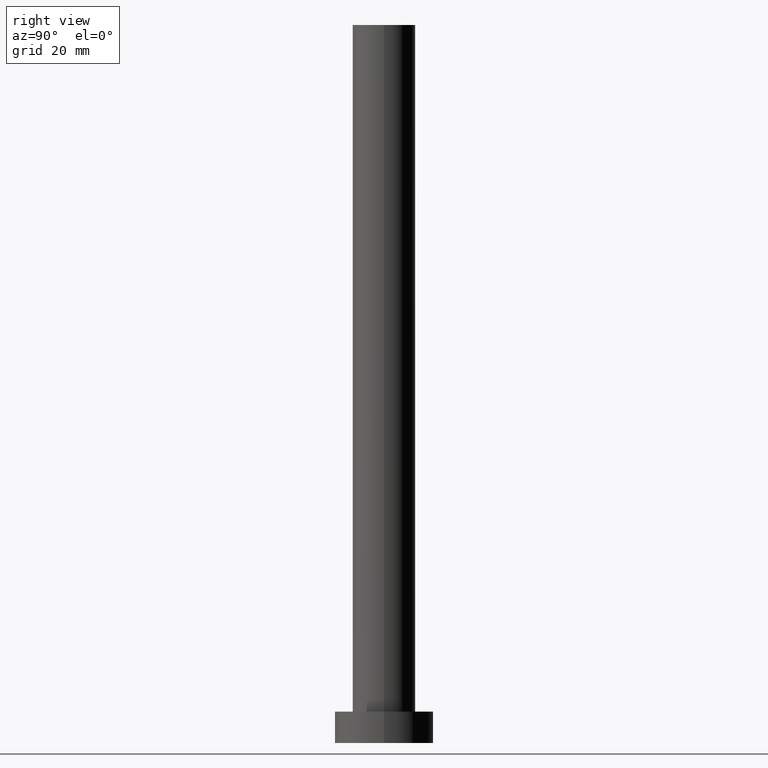
[diagram: clean part render]
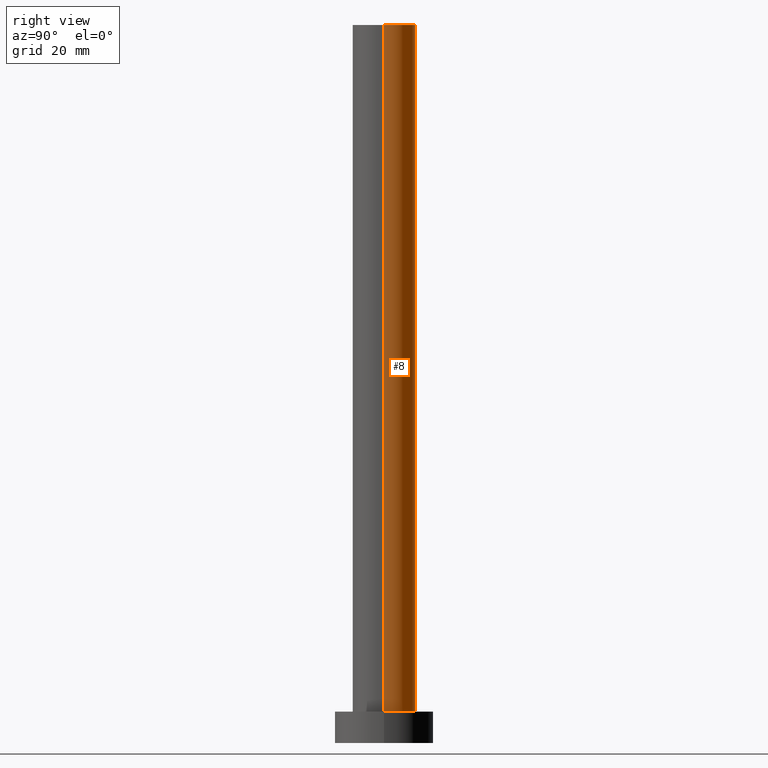
[diagram: same view with one face highlighted and labeled with its STEP entity id]
A machine part, right view. The second image highlights one B-rep face of the part: STEP entity #8.
In plain terms, the highlighted cylindrical surface (edge-blend (fillet) strip) has radius 7 mm, axis along (-0, -0, -1).
Its self-contained STEP definition (entity closure, byte-faithful):
#6 = VECTOR ( 'NONE', #203, 1000.000000000000000 ) ;
#8 = ADVANCED_FACE ( 'NONE', ( #148 ), #113, .T. ) ;
#17 = VECTOR ( 'NONE', #212, 1000.000000000000000 ) ;
#19 = EDGE_CURVE ( 'NONE', #234, #116, #88, .T. ) ;
#20 = DIRECTION ( 'NONE',  ( 1.000000000000000000, 0.000000000000000000, 0.000000000000000000 ) ) ;
#26 = EDGE_CURVE ( 'NONE', #177, #116, #80, .T. ) ;
#43 = ORIENTED_EDGE ( 'NONE', *, *, #26, .F. ) ;
#46 = EDGE_CURVE ( 'NONE', #250, #234, #106, .T. ) ;
#61 = ORIENTED_EDGE ( 'NONE', *, *, #182, .F. ) ;
#66 = CARTESIAN_POINT ( 'NONE',  ( 0.000000000000000000, 0.000000000000000000, 160.0000000000000000 ) ) ;
#69 = AXIS2_PLACEMENT_3D ( 'NONE', #82, #97, #20 ) ;
#80 = LINE ( 'NONE', #153, #17 ) ;
#82 = CARTESIAN_POINT ( 'NONE',  ( 0.000000000000000000, 0.000000000000000000, 7.000000000000000000 ) ) ;
#85 = DIRECTION ( 'NONE',  ( 0.000000000000000000, 0.000000000000000000, 1.000000000000000000 ) ) ;
#88 = CIRCLE ( 'NONE', #69, 7.000000000000000888 ) ;
#90 = CARTESIAN_POINT ( 'NONE',  ( -7.000000000000000888, 0.000000000000000000, 160.0000000000000000 ) ) ;
#97 = DIRECTION ( 'NONE',  ( 0.000000000000000000, 0.000000000000000000, 1.000000000000000000 ) ) ;
#100 = ORIENTED_EDGE ( 'NONE', *, *, #19, .T. ) ;
#104 = CARTESIAN_POINT ( 'NONE',  ( 7.000000000000000888, 8.572527594031474176E-16, 7.000000000000000000 ) ) ;
#106 = LINE ( 'NONE', #219, #6 ) ;
#107 = CARTESIAN_POINT ( 'NONE',  ( -7.000000000000000888, 0.000000000000000000, 7.000000000000000000 ) ) ;
#113 = CYLINDRICAL_SURFACE ( 'NONE', #146, 7.000000000000000888 ) ;
#116 = VERTEX_POINT ( 'NONE', #107 ) ;
#117 = EDGE_LOOP ( 'NONE', ( #61, #215, #100, #43 ) ) ;
#118 = AXIS2_PLACEMENT_3D ( 'NONE', #66, #85, #161 ) ;
#146 = AXIS2_PLACEMENT_3D ( 'NONE', #172, #214, #252 ) ;
#148 = FACE_OUTER_BOUND ( 'NONE', #117, .T. ) ;
#153 = CARTESIAN_POINT ( 'NONE',  ( -7.000000000000000888, 0.000000000000000000, 160.0000000000000000 ) ) ;
#155 = CARTESIAN_POINT ( 'NONE',  ( 7.000000000000000888, 8.572527594031474176E-16, 160.0000000000000000 ) ) ;
#161 = DIRECTION ( 'NONE',  ( 1.000000000000000000, 0.000000000000000000, 0.000000000000000000 ) ) ;
#172 = CARTESIAN_POINT ( 'NONE',  ( 0.000000000000000000, 0.000000000000000000, 160.0000000000000000 ) ) ;
#174 = CIRCLE ( 'NONE', #118, 7.000000000000000888 ) ;
#177 = VERTEX_POINT ( 'NONE', #90 ) ;
#182 = EDGE_CURVE ( 'NONE', #250, #177, #174, .T. ) ;
#203 = DIRECTION ( 'NONE',  ( -0.000000000000000000, -0.000000000000000000, -1.000000000000000000 ) ) ;
#212 = DIRECTION ( 'NONE',  ( -0.000000000000000000, -0.000000000000000000, -1.000000000000000000 ) ) ;
#214 = DIRECTION ( 'NONE',  ( -0.000000000000000000, -0.000000000000000000, -1.000000000000000000 ) ) ;
#215 = ORIENTED_EDGE ( 'NONE', *, *, #46, .T. ) ;
#219 = CARTESIAN_POINT ( 'NONE',  ( 7.000000000000000888, 8.572527594031474176E-16, 160.0000000000000000 ) ) ;
#234 = VERTEX_POINT ( 'NONE', #104 ) ;
#250 = VERTEX_POINT ( 'NONE', #155 ) ;
#252 = DIRECTION ( 'NONE',  ( -1.000000000000000000, 0.000000000000000000, 0.000000000000000000 ) ) ;